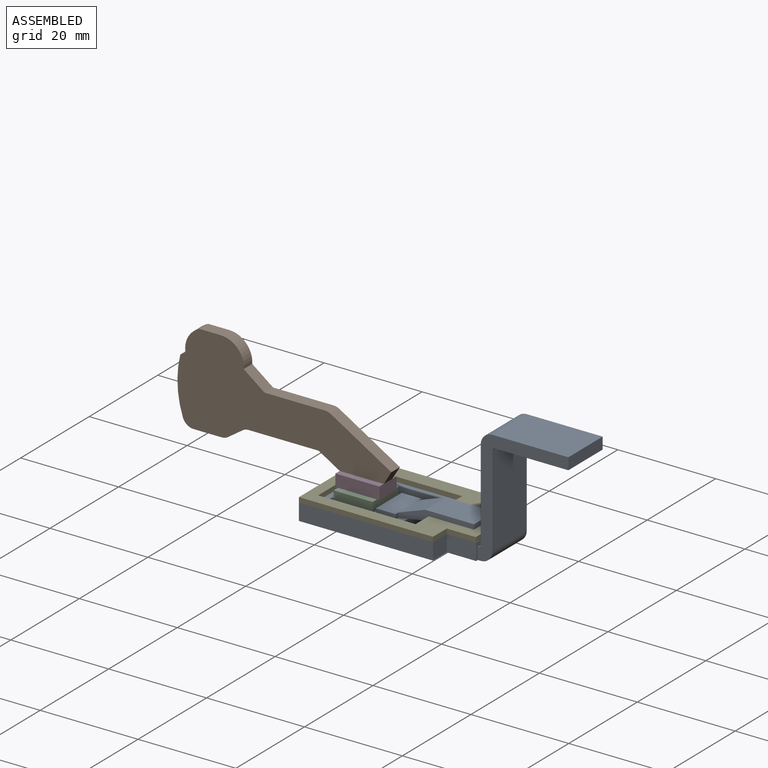
[diagram: assembled view]
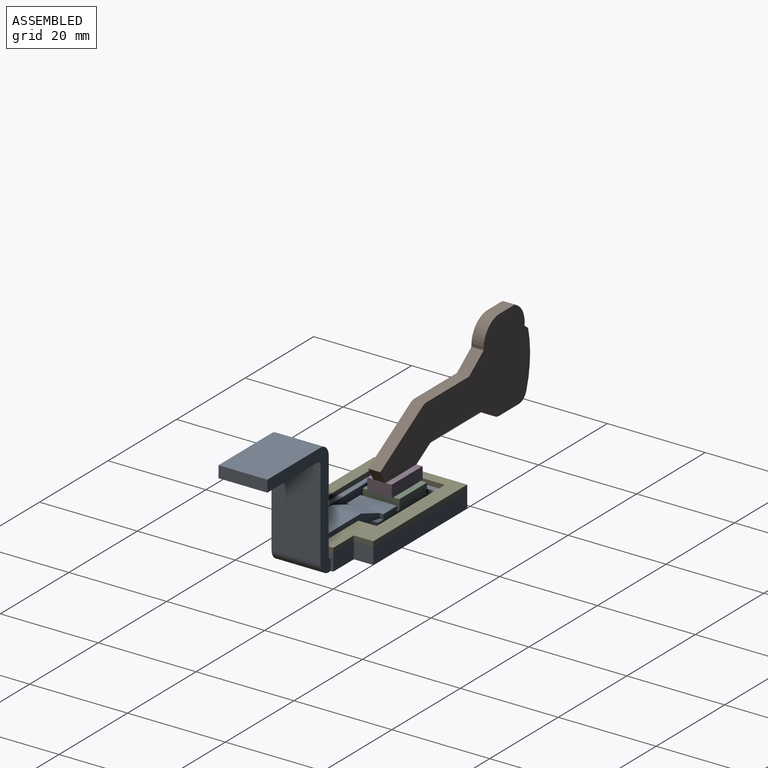
[diagram: assembled view, second angle]
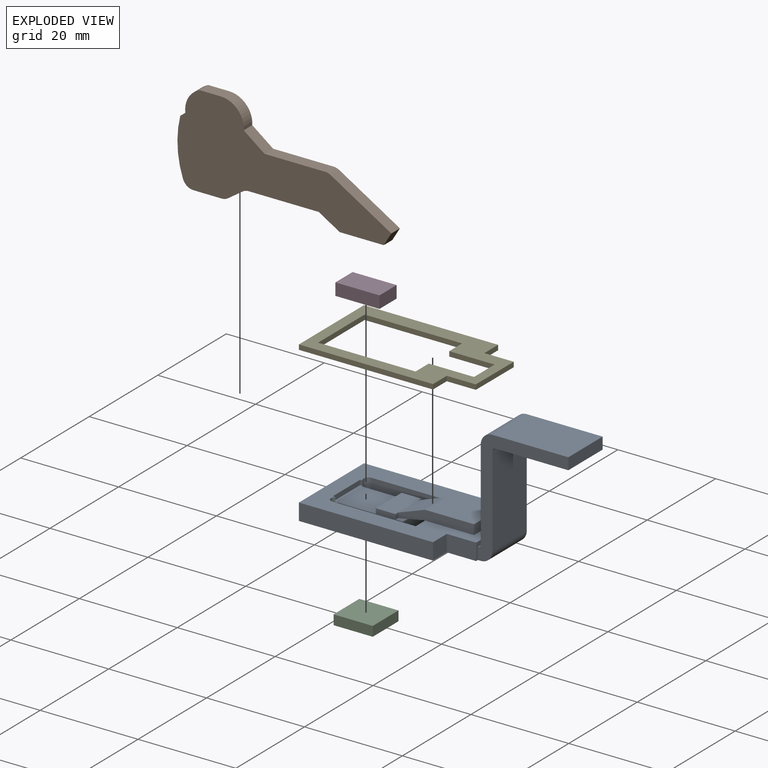
[diagram: exploded view]
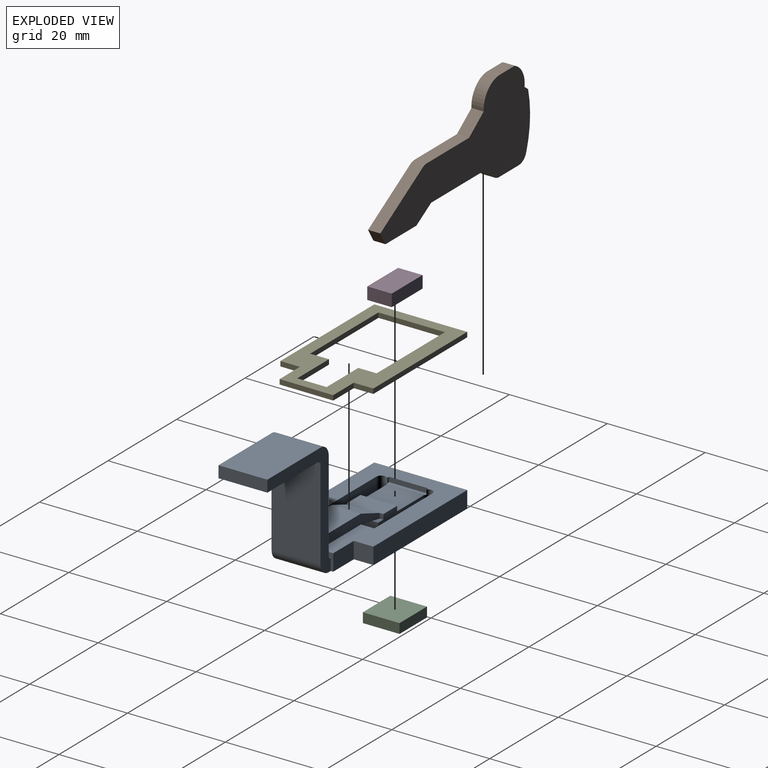
[diagram: exploded view, second angle]
ASSEMBLY  parts=5 mates=4
PART A: 45 faces, bbox 51.9x19x23.9 mm
  f0: plane 8.67x8mm, normal (0,0,1), area 65.4mm2, adj f25,f26,f28,f29,f38,f40,f41,f42
  f1: plane 27.4x3.4mm, normal (0,-1,0), area 93.2mm2, adj f5,f15,f18,f39
  f2: plane 27.4x3.4mm, normal (0,1,0), area 93.2mm2, adj f5,f15,f20,f39
  f3: plane 11x3.4mm, normal (1,0,0), area 13.4mm2, adj f5,f12,f16,f17,f19,f21,f39
  f4: plane 7.5x1.52mm, normal (0,0,1), area 11.4mm2, adj f26,f27,f28,f35,f36,f37
  f5: plane 34x19mm, normal (0,0,-1), area 491.5mm2, adj f1,f2,f3,f13,f15,f16,f17,f18
  f6: plane 10x2.4mm, normal (1,0,0), area 24mm2, adj f7,f9,f16,f17
  f7: plane 15.5x10mm, normal (0,0,1), area 155mm2, adj f6,f10,f16,f17
  f8: cylinder r=0.58mm len=10mm, axis (0,1,0), area 8.2mm2, adj f9,f14,f16,f17
  f9: plane 15x10mm, normal (0,0,-1), area 150mm2, adj f6,f8,f16,f17
  f10: cylinder r=2.4mm len=10mm, axis (0,1,0), area 37.7mm2, adj f7,f11,f16,f17
  f11: plane 18.52x10mm, normal (-1,0,0), area 185.2mm2, adj f10,f12,f16,f17
  f12: cylinder r=0.6mm len=10mm, axis (0,1,0), area 9.4mm2, adj f3,f11,f16,f17
  f13: cylinder r=2.4mm len=10mm, axis (0,1,0), area 37.7mm2, adj f5,f14,f16,f17
  f14: plane 18.56x10mm, normal (1,0,0), area 185.6mm2, adj f8,f13,f16,f17
  f15: plane 19x3.4mm, normal (-1,0,0), area 64.6mm2, adj f1,f2,f5,f39
  f16: plane 23.92x18.5mm, normal (0,-1,0), area 93.7mm2, adj f3,f5,f6,f7,f8,f9,f10,f11
  f17: plane 23.92x18.5mm, normal (0,1,0), area 93.7mm2, adj f3,f5,f6,f7,f8,f9,f10,f11
  f18: plane 4x3.4mm, normal (1,0,0), area 13.6mm2, adj f1,f5,f19,f39
  f19: plane 6x3.4mm, normal (0,-1,0), area 20.4mm2, adj f3,f5,f18,f39
  f20: plane 4x3.4mm, normal (1,0,0), area 13.6mm2, adj f2,f5,f21,f39
  f21: plane 6x3.4mm, normal (0,1,0), area 20.4mm2, adj f3,f5,f20,f39
  f22: plane 17x3.4mm, normal (0,1,0), area 57.8mm2, adj f5,f23,f29,f39
  f23: plane 11.5x3.4mm, normal (-1,0,0), area 39.1mm2, adj f5,f22,f24,f35,f39
  f24: plane 17x3.4mm, normal (0,-1,0), area 57.8mm2, adj f5,f23,f25,f39
  f25: cylinder r=1mm len=3.4mm, axis (0,0,1), area 9.9mm2, adj f0,f5,f24,f26,f39,f42
  f26: plane 13x3.41mm, normal (0,1,0), area 35.2mm2, adj f0,f4,f5,f25,f27,f37,f38,f43
  f27: plane 7.5x2.4mm, normal (1,0,0), area 18mm2, adj f4,f5,f26,f28
  f28: plane 13x3.41mm, normal (0,-1,0), area 35.2mm2, adj f0,f4,f5,f27,f29,f36,f38,f43
  f29: cylinder r=1mm len=3.4mm, axis (0,0,1), area 10mm2, adj f0,f5,f22,f28,f39,f40
  f30: plane 9.99x6mm, normal (0,0,1), area 60mm2, adj f31,f32,f33,f34
  f31: plane 6x2mm, normal (1,0,0), area 12mm2, adj f30,f32,f33,f39
  f32: plane 15.61x3mm, normal (0,1,0), area 28.3mm2, adj f30,f31,f34,f35,f37,f39,f43,f44
  f33: plane 15.61x3mm, normal (0,-1,0), area 28.3mm2, adj f30,f31,f34,f35,f36,f39,f43,f44
  f34: plane 6x5.45mm, normal (-0.34,0,0.94), area 34.8mm2, adj f30,f32,f33,f44
  f35: plane 6x5.52mm, normal (0.18,0,-0.98), area 33.6mm2, adj f4,f23,f32,f33
  f36: plane 1.01x0.75mm, normal (1,0,0), area 0.8mm2, adj f4,f28,f33,f43
  f37: plane 1.01x0.75mm, normal (1,0,0), area 0.8mm2, adj f4,f26,f32,f43
  f38: plane 7.5x1.01mm, normal (-1,0,0), area 7.6mm2, adj f0,f26,f28,f43
  f39: plane 33.4x19mm, normal (0,0,1), area 318.7mm2, adj f1,f2,f3,f15,f18,f19,f20,f21
  f40: plane 1x0.55mm, normal (0,1,0), area 0.5mm2, adj f0,f29,f39,f41
  f41: plane 8x1mm, normal (1,0,0), area 8mm2, adj f0,f39,f40,f42
  f42: plane 1x0.5mm, normal (0,-1,0), area 0.5mm2, adj f0,f25,f39,f41
  f43: plane 7.5x4mm, normal (0,0,1), area 29.4mm2, adj f26,f28,f32,f33,f36,f37,f38,f44
  f44: cylinder r=0.5mm len=6mm, axis (0,-1,0), area 1mm2, adj f32,f33,f34,f43
PART B: 21 faces, bbox 43.7x2.5x18.8 mm
  f0: plane 12.36x2.5mm, normal (0,0,1), area 30.9mm2, adj f1,f18,f19,f20
  f1: plane 3.21x2.5mm, normal (0.6,0,0.8), area 10.1mm2, adj f0,f2,f19,f20
  f2: plane 2.5x1.04mm, normal (0.61,0,0.8), area 3.3mm2, adj f1,f3,f19,f20
  f3: cylinder r=4.7mm len=5mm, axis (0,1,0), area 19.2mm2, adj f2,f4,f19,f20
  f4: plane 4.32x2.5mm, normal (0,0,1), area 10.8mm2, adj f3,f5,f19,f20
  f5: cylinder r=4.72mm len=5mm, axis (0,1,0), area 15.6mm2, adj f4,f6,f19,f20
  f6: plane 2.5x1.04mm, normal (-0.61,0,0.8), area 3.3mm2, adj f5,f7,f19,f20
  f7: cylinder r=20.28mm len=11.48mm, axis (0,1,0), area 29.1mm2, adj f6,f8,f19,f20
  f8: cylinder r=2.3mm len=2.5mm, axis (0,1,0), area 7.1mm2, adj f7,f9,f19,f20
  f9: plane 5.75x2.5mm, normal (0,0,-1), area 14.4mm2, adj f8,f10,f19,f20
  f10: cylinder r=2.3mm len=2.5mm, axis (0,1,0), area 3.5mm2, adj f9,f11,f19,f20
  f11: plane 2.94x2.5mm, normal (0.57,0,-0.82), area 8.9mm2, adj f10,f12,f19,f20
  f12: cylinder r=2.3mm len=2.5mm, axis (0,1,0), area 3.5mm2, adj f11,f13,f19,f20
  f13: plane 14.29x2.5mm, normal (0,0,-1), area 35.7mm2, adj f12,f14,f19,f20
  f14: plane 4.28x2.58mm, normal (-0.52,0,-0.86), area 12.5mm2, adj f13,f15,f19,f20
  f15: plane 9x2.5mm, normal (0,0,-1), area 22.5mm2, adj f14,f16,f19,f20
  f16: plane 2.57x2.5mm, normal (0.86,0,-0.52), area 7.5mm2, adj f15,f17,f19,f20
  f17: plane 12.37x7.45mm, normal (0.52,0,0.86), area 36.1mm2, adj f16,f18,f19,f20
  f18: cylinder r=2.29mm len=2.5mm, axis (0,1,0), area 3.1mm2, adj f0,f17,f19,f20
  f19: plane 43.71x18.81mm, normal (0,-1,0), area 448.5mm2, adj f0,f1,f2,f3,f4,f5,f6,f7
  f20: plane 43.71x18.81mm, normal (0,1,0), area 448.5mm2, adj f0,f1,f2,f3,f4,f5,f6,f7
PART C: 6 faces, bbox 8x7.5x2 mm
  f0: plane 7.5x2mm, normal (1,0,0), area 15mm2, adj f1,f3,f4,f5
  f1: plane 8x2mm, normal (0,1,0), area 16mm2, adj f0,f2,f4,f5
  f2: plane 7.5x2mm, normal (-1,0,0), area 15mm2, adj f1,f3,f4,f5
  f3: plane 8x2mm, normal (0,-1,0), area 16mm2, adj f0,f2,f4,f5
  f4: plane 8x7.5mm, normal (0,0,1), area 60mm2, adj f0,f1,f2,f3
  f5: plane 8x7.5mm, normal (0,0,-1), area 60mm2, adj f0,f1,f2,f3
PART D: 6 faces, bbox 9x5x2.5 mm
  f0: plane 9x5mm, normal (0,0,1), area 45mm2, adj f1,f3,f4,f5
  f1: plane 5x2.5mm, normal (-1,0,0), area 12.5mm2, adj f0,f2,f4,f5
  f2: plane 9x5mm, normal (0,0,-1), area 45mm2, adj f1,f3,f4,f5
  f3: plane 5x2.5mm, normal (1,0,0), area 12.5mm2, adj f0,f2,f4,f5
  f4: plane 9x2.5mm, normal (0,1,0), area 22.5mm2, adj f0,f1,f2,f3
  f5: plane 9x2.5mm, normal (0,-1,0), area 22.5mm2, adj f0,f1,f2,f3
PART E: 18 faces, bbox 33.4x19x1 mm
  f0: plane 3.84x1mm, normal (-1,0,0), area 3.8mm2, adj f1,f15,f16,f17
  f1: plane 19.92x1mm, normal (0,1,0), area 19.9mm2, adj f0,f2,f16,f17
  f2: plane 13.58x1mm, normal (1,0,0), area 13.6mm2, adj f1,f3,f16,f17
  f3: plane 19.92x1mm, normal (0,-1,0), area 19.9mm2, adj f2,f4,f16,f17
  f4: plane 3.74x1mm, normal (-1,0,0), area 3.7mm2, adj f3,f5,f16,f17
  f5: plane 9.25x1mm, normal (0,-1,0), area 9.3mm2, adj f4,f6,f16,f17
  f6: plane 6x1mm, normal (-1,0,0), area 6mm2, adj f5,f15,f16,f17
  f7: plane 11x1mm, normal (1,-0.01,0), area 11mm2, adj f8,f14,f16,f17
  f8: plane 6x1mm, normal (0,1,0), area 6mm2, adj f7,f9,f16,f17
  f9: plane 4x1mm, normal (1,0,0), area 4mm2, adj f8,f10,f16,f17
  f10: plane 27.4x1mm, normal (0,1,0), area 27.4mm2, adj f9,f11,f16,f17
  f11: plane 19x1mm, normal (-1,0,0), area 19mm2, adj f10,f12,f16,f17
  f12: plane 27.4x1mm, normal (0,-1,0), area 27.4mm2, adj f11,f13,f16,f17
  f13: plane 4x1mm, normal (1,0,0), area 4mm2, adj f12,f14,f16,f17
  f14: plane 5.94x1mm, normal (0,-1,0), area 5.9mm2, adj f7,f13,f16,f17
  f15: plane 9.25x1mm, normal (0,1,0), area 9.3mm2, adj f0,f6,f16,f17
  f16: plane 33.4x19mm, normal (0,0,1), area 260.2mm2, adj f0,f1,f2,f3,f4,f5,f6,f7
  f17: plane 33.4x19mm, normal (0,0,-1), area 260.2mm2, adj f0,f1,f2,f3,f4,f5,f6,f7
PLACE A t=(-48.74,6.93,-1.82)mm
PLACE B t=(-24.63,-1.55,-0.6)mm
PLACE C t=(-48.92,6.95,-1.82)mm
PLACE D t=(-24.63,-1.55,-0.6)mm
PLACE E t=(-48.74,6.93,-1.82)mm
MATE fastened E.f17 <-> A.f39  axis (0,0,-1) through (-40.68,-12.07,-5.61)mm
MATE fastened C.f4 <-> D.f2  axis (0,0,1) through (-33.47,-2.8,-4.61)mm
MATE fastened A.f0 <-> C.f5  axis (0,0,1) through (-37.47,-2.8,-6.61)mm
MATE fastened D.f0 <-> B.f15  axis (0,0,1) through (-33.47,-2.8,-2.11)mm
